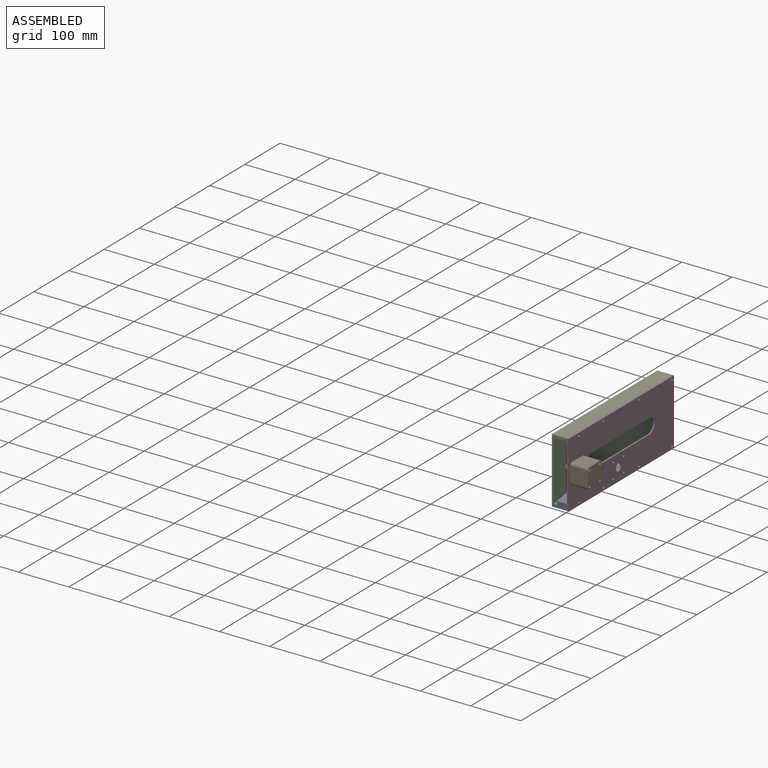
[diagram: assembled view]
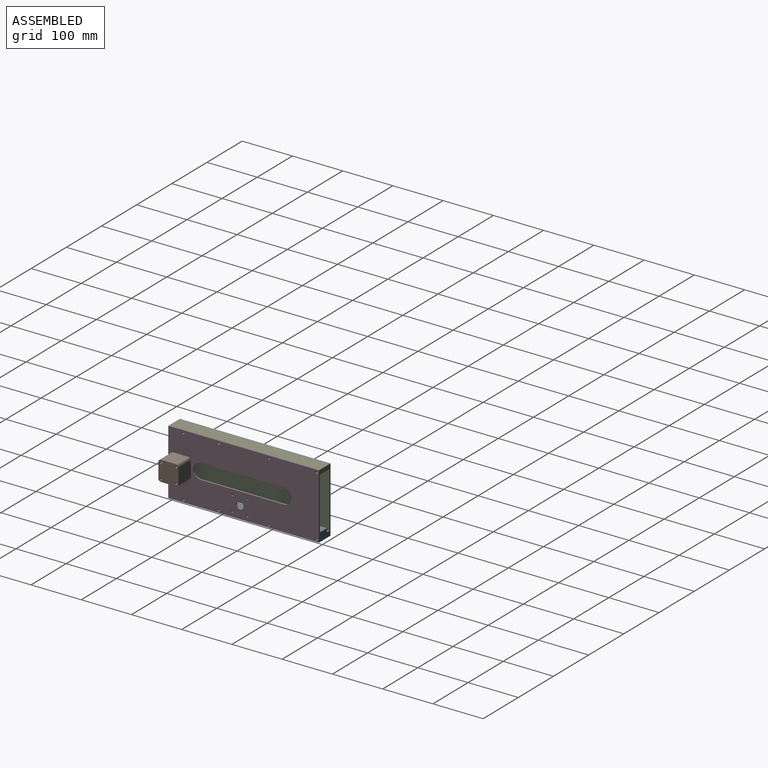
[diagram: assembled view, second angle]
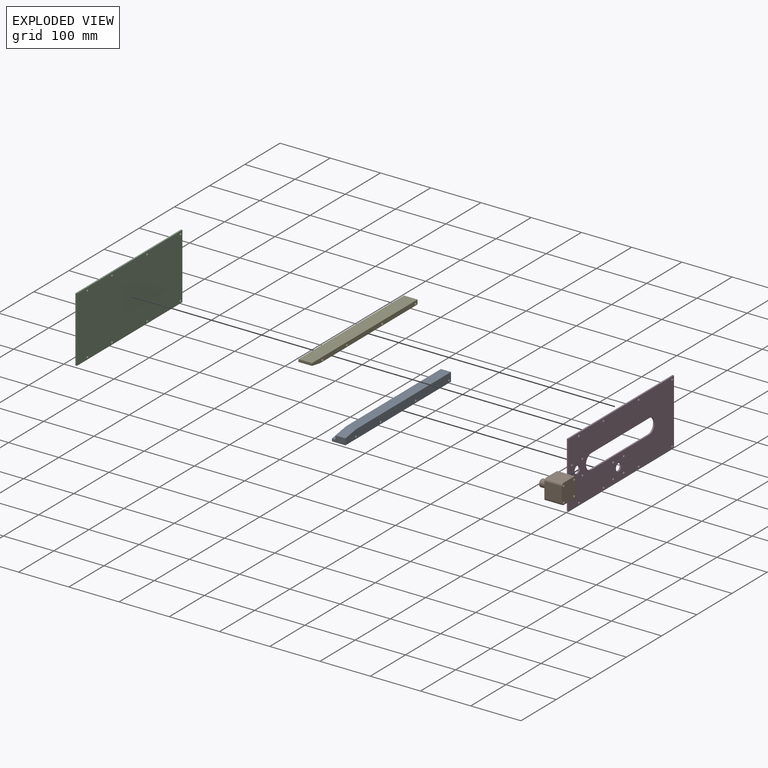
[diagram: exploded view]
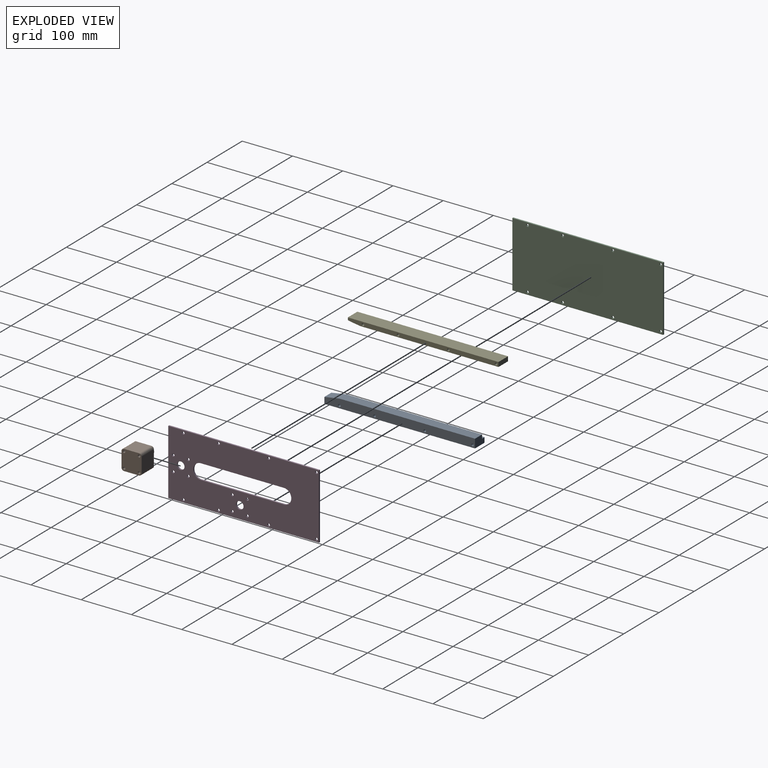
[diagram: exploded view, second angle]
ASSEMBLY  parts=5 mates=10
PART A: 14 faces, bbox 27x300x17.5 mm
  f0: plane 27x12.5mm, normal (0,-1,0), area 285mm2, adj f1,f2,f3,f11,f12,f13
  f1: plane 300x10mm, normal (-1,0,0), area 2846.5mm2, adj f0,f2,f4,f5,f6,f7,f8,f9
  f2: plane 300x27mm, normal (0,0,-1), area 8100mm2, adj f0,f1,f3,f5
  f3: plane 300x17.5mm, normal (1,0,0), area 5096.5mm2, adj f0,f2,f5,f6,f7,f8,f9,f10
  f4: plane 270x7mm, normal (0,0,1), area 1890mm2, adj f1,f5,f11,f12
  f5: plane 27x17.5mm, normal (0,1,0), area 420mm2, adj f1,f2,f3,f4,f10,f11
  f6: cylinder r=2.5mm len=27mm, axis (1,0,0), area 424.1mm2, adj f1,f3
  f7: cylinder r=2.5mm len=27mm, axis (1,0,0), area 424.1mm2, adj f1,f3
  f8: cylinder r=2.5mm len=27mm, axis (1,0,0), area 424.1mm2, adj f1,f3
  f9: cylinder r=2.5mm len=27mm, axis (1,0,0), area 424.1mm2, adj f1,f3
  f10: plane 270x20mm, normal (0,0,1), area 5400mm2, adj f3,f5,f11,f13
  f11: plane 300x12.5mm, normal (-1,0,0), area 2250mm2, adj f0,f4,f5,f10,f12,f13
  f12: plane 30x7mm, normal (0,-0.16,0.99), area 212.9mm2, adj f0,f1,f4,f11
  f13: plane 30x20mm, normal (0,-0.16,0.99), area 608.3mm2, adj f0,f3,f10,f11
PART B: 17 faces, bbox 40x55x40 mm
  f0: plane 35x30mm, normal (-1,0,0), area 1050mm2, adj f8,f9,f14,f15
  f1: plane 35x30mm, normal (0,0,-1), area 1050mm2, adj f8,f9,f12,f15
  f2: plane 35x30mm, normal (1,0,0), area 1050mm2, adj f8,f9,f12,f13
  f3: cylinder r=2.5mm len=35mm, axis (0,1,0), area 549.8mm2, adj f8,f9
  f4: cylinder r=2.5mm len=35mm, axis (0,1,0), area 549.8mm2, adj f8,f9
  f5: cylinder r=2.5mm len=35mm, axis (0,1,0), area 549.8mm2, adj f8,f9
  f6: cylinder r=2.5mm len=35mm, axis (0,1,0), area 549.8mm2, adj f8,f9
  f7: plane 35x30mm, normal (0,0,1), area 1050mm2, adj f8,f9,f13,f14
  f8: plane 40x40mm, normal (0,-1,0), area 1500mm2, adj f0,f1,f2,f3,f4,f5,f6,f7
  f9: plane 40x40mm, normal (0,1,0), area 1323.3mm2, adj f0,f1,f2,f3,f4,f5,f6,f7
  f10: cylinder r=7.5mm len=18mm, axis (0,-1,0), area 848.2mm2, adj f9,f16
  f11: plane 11x11mm, normal (0,1,0), area 95mm2, adj f16
  f12: cylinder r=5mm len=35mm, axis (0,1,0), area 274.9mm2, adj f1,f2,f8,f9
  f13: cylinder r=5mm len=35mm, axis (0,-1,0), area 274.9mm2, adj f2,f7,f8,f9
  f14: cylinder r=5mm len=35mm, axis (0,1,0), area 274.9mm2, adj f0,f7,f8,f9
  f15: cylinder r=5mm len=35mm, axis (0,-1,0), area 274.9mm2, adj f0,f1,f8,f9
  f16: torus R=5.5mm, axis (0,1,0), area 133.7mm2, adj f10,f11
PART C: 14 faces, bbox 3x300x130 mm
  f0: plane 300x130mm, normal (-1,0,0), area 38842.9mm2, adj f1,f3,f4,f5,f6,f7,f8,f9
  f1: plane 300x3mm, normal (0,0,-1), area 900mm2, adj f0,f2,f4,f5
  f2: plane 300x130mm, normal (1,0,0), area 38842.9mm2, adj f1,f3,f4,f5,f6,f7,f8,f9
  f3: plane 300x3mm, normal (0,0,1), area 900mm2, adj f0,f2,f4,f5
  f4: plane 130x3mm, normal (0,-1,0), area 390mm2, adj f0,f1,f2,f3
  f5: plane 130x3mm, normal (0,1,0), area 390mm2, adj f0,f1,f2,f3
  f6: cylinder r=2.5mm len=5mm, axis (-1,0,0), area 47.1mm2, adj f0,f2
  f7: cylinder r=2.5mm len=5mm, axis (-1,0,0), area 47.1mm2, adj f0,f2
  f8: cylinder r=2.5mm len=5mm, axis (-1,0,0), area 47.1mm2, adj f0,f2
  f9: cylinder r=2.5mm len=5mm, axis (-1,0,0), area 47.1mm2, adj f0,f2
  f10: cylinder r=2.5mm len=5mm, axis (-1,0,0), area 47.1mm2, adj f0,f2
  f11: cylinder r=2.5mm len=5mm, axis (-1,0,0), area 47.1mm2, adj f0,f2
  f12: cylinder r=2.5mm len=5mm, axis (-1,0,0), area 47.1mm2, adj f0,f2
  f13: cylinder r=2.5mm len=5mm, axis (-1,0,0), area 47.1mm2, adj f0,f2
PART D: 28 faces, bbox 3x300x130 mm
  f0: plane 300x130mm, normal (-1,0,0), area 32675.6mm2, adj f1,f3,f4,f5,f6,f7,f8,f9
  f1: plane 300x3mm, normal (0,0,-1), area 900mm2, adj f0,f2,f4,f19
  f2: plane 300x130mm, normal (1,0,0), area 32675.6mm2, adj f1,f3,f4,f5,f6,f7,f8,f9
  f3: plane 300x3mm, normal (0,0,1), area 900mm2, adj f0,f2,f4,f19
  f4: plane 130x3mm, normal (0,1,0), area 390mm2, adj f0,f1,f2,f3
  f5: plane 165x3mm, normal (0,0,1), area 495mm2, adj f0,f2,f6,f8
  f6: cylinder r=15mm len=30mm, axis (-1,0,0), area 141.4mm2, adj f0,f2,f5,f7
  f7: plane 165x3mm, normal (0,0,-1), area 495mm2, adj f0,f2,f6,f8
  f8: cylinder r=15mm len=30mm, axis (-1,0,0), area 141.4mm2, adj f0,f2,f5,f7
  f9: cylinder r=7.5mm len=15mm, axis (-1,0,0), area 141.4mm2, adj f0,f2
  f10: cylinder r=2.5mm len=5mm, axis (-1,0,0), area 47.1mm2, adj f0,f2
  f11: cylinder r=2.5mm len=5mm, axis (-1,0,0), area 47.1mm2, adj f0,f2
  f12: cylinder r=2.5mm len=5mm, axis (-1,0,0), area 47.1mm2, adj f0,f2
  f13: cylinder r=2.5mm len=5mm, axis (-1,0,0), area 47.1mm2, adj f0,f2
  f14: cylinder r=2.5mm len=5mm, axis (-1,0,0), area 47.1mm2, adj f0,f2
  f15: cylinder r=2.5mm len=5mm, axis (-1,0,0), area 47.1mm2, adj f0,f2
  f16: cylinder r=2.5mm len=5mm, axis (-1,0,0), area 47.1mm2, adj f0,f2
  f17: cylinder r=2.5mm len=5mm, axis (-1,0,0), area 47.1mm2, adj f0,f2
  f18: cylinder r=7.5mm len=15mm, axis (-1,0,0), area 141.4mm2, adj f0,f2
  f19: plane 130x3mm, normal (0,-1,0), area 390mm2, adj f0,f1,f2,f3
  f20: cylinder r=2.5mm len=5mm, axis (-1,0,0), area 47.1mm2, adj f0,f2
  f21: cylinder r=2.5mm len=5mm, axis (-1,0,0), area 47.1mm2, adj f0,f2
  f22: cylinder r=2.5mm len=5mm, axis (-1,0,0), area 47.1mm2, adj f0,f2
  f23: cylinder r=2.5mm len=5mm, axis (-1,0,0), area 47.1mm2, adj f0,f2
  f24: cylinder r=2.5mm len=5mm, axis (-1,0,0), area 47.1mm2, adj f0,f2
  f25: cylinder r=2.5mm len=5mm, axis (-1,0,0), area 47.1mm2, adj f0,f2
  f26: cylinder r=2.5mm len=5mm, axis (-1,0,0), area 47.1mm2, adj f0,f2
  f27: cylinder r=2.5mm len=5mm, axis (-1,0,0), area 47.1mm2, adj f0,f2
PART E: 11 faces, bbox 27x300x9 mm
  f0: plane 27x24mm, normal (0,-0.16,-0.99), area 656.9mm2, adj f1,f2,f3,f6
  f1: plane 300x9mm, normal (1,0,0), area 2573.5mm2, adj f0,f2,f4,f5,f6,f7,f8,f9
  f2: plane 27x5mm, normal (0,-1,0), area 135mm2, adj f0,f1,f3,f4
  f3: plane 300x9mm, normal (-1,0,0), area 2573.5mm2, adj f0,f2,f4,f5,f6,f7,f8,f9
  f4: plane 300x27mm, normal (0,0,1), area 8100mm2, adj f1,f2,f3,f5
  f5: plane 27x9mm, normal (0,1,0), area 243mm2, adj f1,f3,f4,f6
  f6: plane 276x27mm, normal (0,0,-1), area 7452mm2, adj f0,f1,f3,f5
  f7: cylinder r=2.5mm len=27mm, axis (1,0,0), area 424.1mm2, adj f1,f3
  f8: cylinder r=2.5mm len=27mm, axis (1,0,0), area 424.1mm2, adj f1,f3
  f9: cylinder r=2.5mm len=27mm, axis (1,0,0), area 424.1mm2, adj f1,f3
  f10: cylinder r=2.5mm len=27mm, axis (1,0,0), area 424.1mm2, adj f1,f3
PLACE A t=(-223.79,97.42,-4.14)mm
PLACE B rot(axis=(0,0,1),90deg) t=(-193.79,-197.58,40.86)mm
PLACE C t=(-226.79,97.42,-4.14)mm
PLACE D rot(axis=(0,0,-1),180deg) t=(-193.79,-202.58,-4.14)mm
PLACE E rot(axis=(0.02,0,-1),0deg) t=(-223.79,97.42,115.86)mm
MATE planar D.f2 <-> E.f1  axis (-1,0,0) through (-196.79,-202.58,125.86)mm
MATE fastened E.f7 <-> C.f6  axis (-1,0,0) through (-223.79,-172.58,120.86)mm
MATE fastened A.f6 <-> C.f7  axis (-1,0,0) through (-223.79,-172.58,0.86)mm
MATE parallel A.f1 <-> C.f2  axis (1,0,0) through (-223.79,-202.58,-4.14)mm
MATE parallel E.f3 <-> C.f2  axis (1,0,0) through (-223.79,97.42,125.86)mm
MATE planar E.f7 <-> C.f6  axis (-1,0,0) through (-223.79,-172.58,120.86)mm
MATE planar D.f25 <-> E.f7  axis (-1,0,0) through (-196.79,-172.58,120.86)mm
MATE fastened D.f25 <-> E.f7  axis (-1,0,0) through (-196.79,-172.58,120.86)mm
MATE fastened B.f3 <-> D.f12  axis (-1,0,0) through (-193.79,-192.58,45.86)mm
MATE planar E.f7 <-> D.f25  axis (1,0,0) through (-196.79,-172.58,120.86)mm
